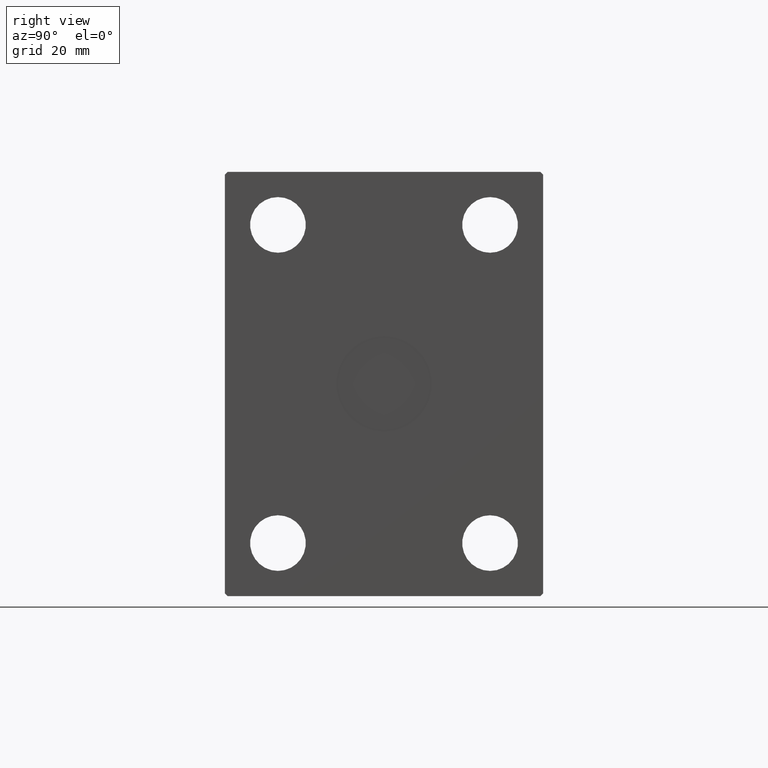
[diagram: clean part render]
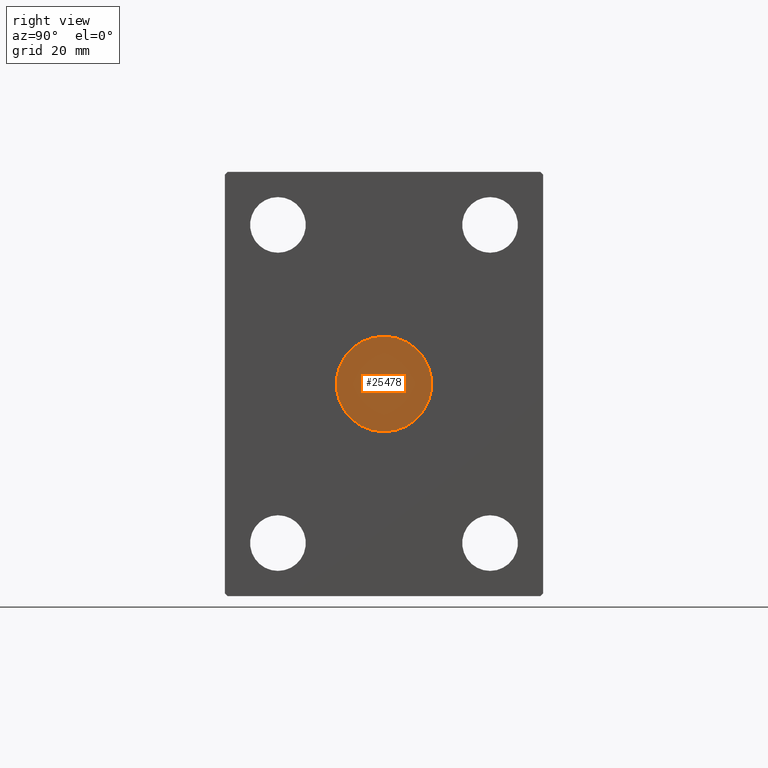
[diagram: same view with one face highlighted and labeled with its STEP entity id]
A machine part, right view. The second image highlights one B-rep face of the part: STEP entity #25478.
In plain terms, the highlighted planar face has unit normal (1, 0, 0).
Its self-contained STEP definition (entity closure, byte-faithful):
#984 = AXIS2_PLACEMENT_3D ( 'NONE', #2819, #2407, #11846 ) ;
#1929 = CIRCLE ( 'NONE', #25925, 18.00000000000000000 ) ;
#2167 = DIRECTION ( 'NONE',  ( 0.000000000000000000, 0.000000000000000000, -1.000000000000000000 ) ) ;
#2407 = DIRECTION ( 'NONE',  ( 1.000000000000000000, 0.000000000000000000, 0.000000000000000000 ) ) ;
#2778 = VERTEX_POINT ( 'NONE', #15083 ) ;
#2794 = FACE_OUTER_BOUND ( 'NONE', #29890, .T. ) ;
#2819 = CARTESIAN_POINT ( 'NONE',  ( 189.7999999999999829, 0.000000000000000000, 0.000000000000000000 ) ) ;
#9641 = ORIENTED_EDGE ( 'NONE', *, *, #41508, .T. ) ;
#11123 = EDGE_CURVE ( 'NONE', #2778, #12306, #15402, .T. ) ;
#11297 = AXIS2_PLACEMENT_3D ( 'NONE', #38866, #15471, #2167 ) ;
#11846 = DIRECTION ( 'NONE',  ( 0.000000000000000000, 0.000000000000000000, -1.000000000000000000 ) ) ;
#12306 = VERTEX_POINT ( 'NONE', #38023 ) ;
#15083 = CARTESIAN_POINT ( 'NONE',  ( 189.7999999999999829, 0.000000000000000000, -18.00000000000000000 ) ) ;
#15227 = CARTESIAN_POINT ( 'NONE',  ( 189.7999999999999829, 0.000000000000000000, 0.000000000000000000 ) ) ;
#15402 = CIRCLE ( 'NONE', #984, 18.00000000000000000 ) ;
#15471 = DIRECTION ( 'NONE',  ( 1.000000000000000000, 0.000000000000000000, 0.000000000000000000 ) ) ;
#19308 = PLANE ( 'NONE',  #11297 ) ;
#23796 = ORIENTED_EDGE ( 'NONE', *, *, #11123, .T. ) ;
#25478 = ADVANCED_FACE ( 'NONE', ( #2794 ), #19308, .T. ) ;
#25925 = AXIS2_PLACEMENT_3D ( 'NONE', #15227, #34338, #41222 ) ;
#29890 = EDGE_LOOP ( 'NONE', ( #23796, #9641 ) ) ;
#34338 = DIRECTION ( 'NONE',  ( 1.000000000000000000, 0.000000000000000000, 0.000000000000000000 ) ) ;
#38023 = CARTESIAN_POINT ( 'NONE',  ( 189.7999999999999829, 2.204364238465235428E-15, 18.00000000000000000 ) ) ;
#38866 = CARTESIAN_POINT ( 'NONE',  ( 189.7999999999999829, 0.000000000000000000, 0.000000000000000000 ) ) ;
#41222 = DIRECTION ( 'NONE',  ( 0.000000000000000000, 0.000000000000000000, -1.000000000000000000 ) ) ;
#41508 = EDGE_CURVE ( 'NONE', #12306, #2778, #1929, .T. ) ;